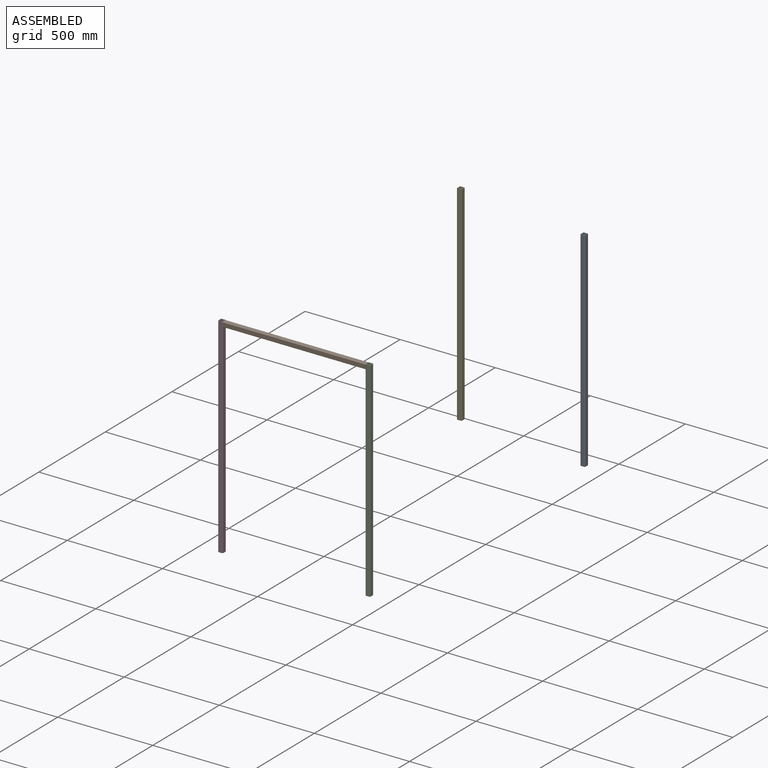
[diagram: assembled view]
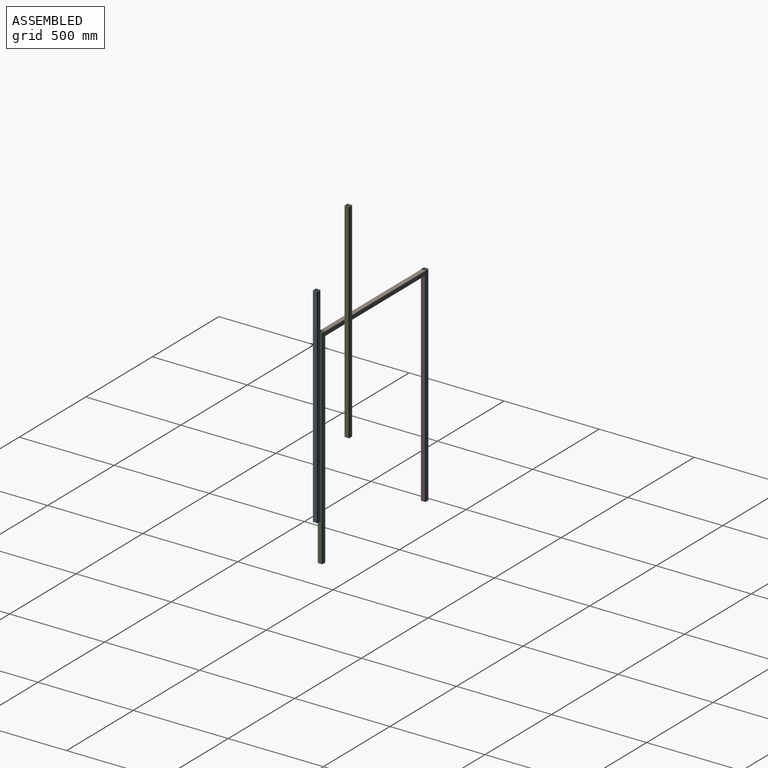
[diagram: assembled view, second angle]
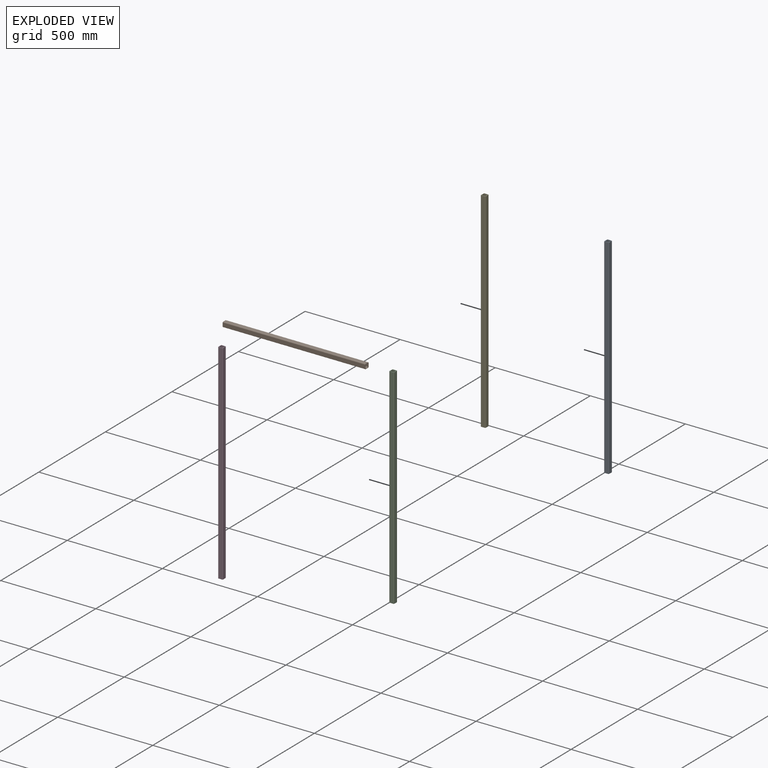
[diagram: exploded view]
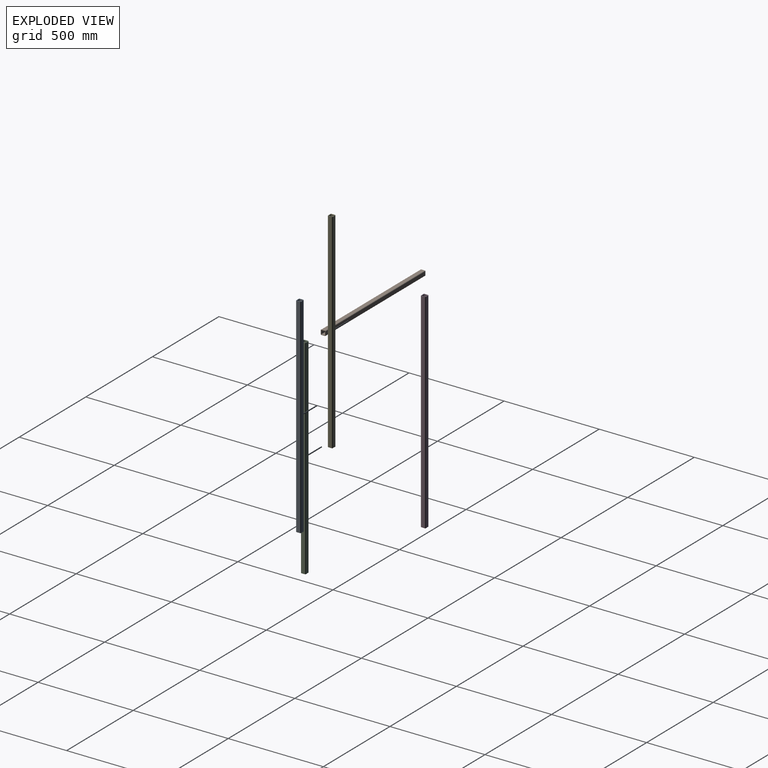
[diagram: exploded view, second angle]
ASSEMBLY  parts=5 mates=6
PART A: 18 faces, bbox 25x25x1100 mm
  f0: plane 1100x19mm, normal (0,-1,0), area 20900mm2, adj f8,f9,f10,f13
  f1: plane 1100x19mm, normal (-1,0,0), area 20900mm2, adj f8,f9,f10,f11
  f2: plane 1100x19mm, normal (0,1,0), area 20900mm2, adj f8,f9,f11,f12
  f3: plane 1100x19mm, normal (1,0,0), area 20900mm2, adj f8,f9,f14,f17
  f4: plane 1100x19mm, normal (0,1,0), area 20900mm2, adj f8,f9,f14,f15
  f5: plane 1100x19mm, normal (-1,0,0), area 20900mm2, adj f8,f9,f15,f16
  f6: plane 1100x19mm, normal (0,-1,0), area 20900mm2, adj f8,f9,f16,f17
  f7: plane 1100x19mm, normal (1,0,0), area 20900mm2, adj f8,f9,f12,f13
  f8: plane 25x25mm, normal (0,0,1), area 217.5mm2, adj f0,f1,f2,f3,f4,f5,f6,f7
  f9: plane 25x25mm, normal (0,0,-1), area 217.5mm2, adj f0,f1,f2,f3,f4,f5,f6,f7
  f10: cylinder r=0.5mm len=1100mm, axis (0,0,-1), area 863.9mm2, adj f0,f1,f8,f9
  f11: cylinder r=0.5mm len=1100mm, axis (0,0,1), area 863.9mm2, adj f1,f2,f8,f9
  f12: cylinder r=0.5mm len=1100mm, axis (0,0,-1), area 863.9mm2, adj f2,f7,f8,f9
  f13: cylinder r=0.5mm len=1100mm, axis (0,0,1), area 863.9mm2, adj f0,f7,f8,f9
  f14: cylinder r=3mm len=1100mm, axis (0,0,1), area 5183.6mm2, adj f3,f4,f8,f9
  f15: cylinder r=3mm len=1100mm, axis (0,0,-1), area 5183.6mm2, adj f4,f5,f8,f9
  f16: cylinder r=3mm len=1100mm, axis (0,0,1), area 5183.6mm2, adj f5,f6,f8,f9
  f17: cylinder r=3mm len=1100mm, axis (0,0,-1), area 5183.6mm2, adj f3,f6,f8,f9
PART B: 18 faces, bbox 25x25x750 mm
  f0: plane 750x19mm, normal (0,-1,0), area 14250mm2, adj f8,f9,f10,f13
  f1: plane 750x19mm, normal (-1,0,0), area 14250mm2, adj f8,f9,f10,f11
  f2: plane 750x19mm, normal (0,1,0), area 14250mm2, adj f8,f9,f11,f12
  f3: plane 750x19mm, normal (1,0,0), area 14250mm2, adj f8,f9,f14,f17
  f4: plane 750x19mm, normal (0,1,0), area 14250mm2, adj f8,f9,f14,f15
  f5: plane 750x19mm, normal (-1,0,0), area 14250mm2, adj f8,f9,f15,f16
  f6: plane 750x19mm, normal (0,-1,0), area 14250mm2, adj f8,f9,f16,f17
  f7: plane 750x19mm, normal (1,0,0), area 14250mm2, adj f8,f9,f12,f13
  f8: plane 25x25mm, normal (0,0,1), area 217.5mm2, adj f0,f1,f2,f3,f4,f5,f6,f7
  f9: plane 25x25mm, normal (0,0,-1), area 217.5mm2, adj f0,f1,f2,f3,f4,f5,f6,f7
  f10: cylinder r=0.5mm len=750mm, axis (0,0,-1), area 589mm2, adj f0,f1,f8,f9
  f11: cylinder r=0.5mm len=750mm, axis (0,0,1), area 589mm2, adj f1,f2,f8,f9
  f12: cylinder r=0.5mm len=750mm, axis (0,0,-1), area 589mm2, adj f2,f7,f8,f9
  f13: cylinder r=0.5mm len=750mm, axis (0,0,1), area 589mm2, adj f0,f7,f8,f9
  f14: cylinder r=3mm len=750mm, axis (0,0,1), area 3534.3mm2, adj f3,f4,f8,f9
  f15: cylinder r=3mm len=750mm, axis (0,0,-1), area 3534.3mm2, adj f4,f5,f8,f9
  f16: cylinder r=3mm len=750mm, axis (0,0,1), area 3534.3mm2, adj f5,f6,f8,f9
  f17: cylinder r=3mm len=750mm, axis (0,0,-1), area 3534.3mm2, adj f3,f6,f8,f9
PART C: same geometry as A
PART D: same geometry as A
PART E: same geometry as A
PLACE A t=(357.99,515.28,-87.11)mm
PLACE B rot(axis=(0.71,0,-0.71),180deg) t=(-424.85,1.57,373.25)mm
PLACE C t=(-412.35,1.57,-714.25)mm
PLACE D t=(-1187.35,1.57,-714.25)mm
PLACE E t=(-155.8,322.32,68.41)mm
MATE planar B.f5 <-> D.f8  axis (0,0,1) through (-799.85,1.57,385.75)mm
MATE planar B.f4 <-> D.f6  axis (0,-1,0) through (-799.85,-10.93,373.25)mm
MATE planar C.f5 <-> B.f9  axis (-1,0,0) through (-424.85,1.57,-164.25)mm
MATE planar C.f6 <-> B.f4  axis (0,-1,0) through (-412.35,-10.93,-164.25)mm
MATE planar B.f8 <-> D.f3  axis (-1,0,0) through (-1174.85,1.57,373.25)mm
MATE planar C.f8 <-> B.f5  axis (0,0,1) through (-412.35,-10.93,385.75)mm
